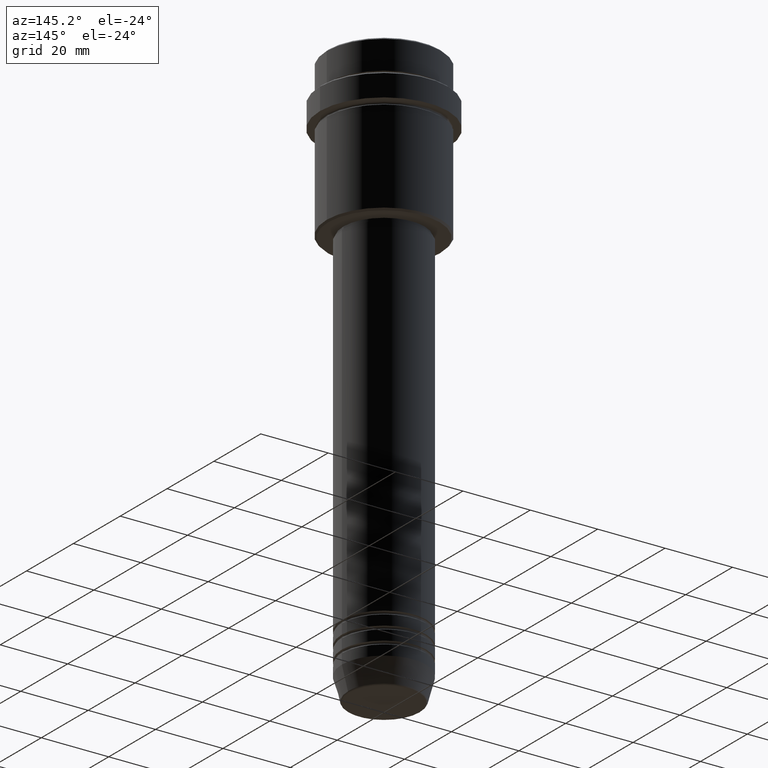
[diagram: clean part render]
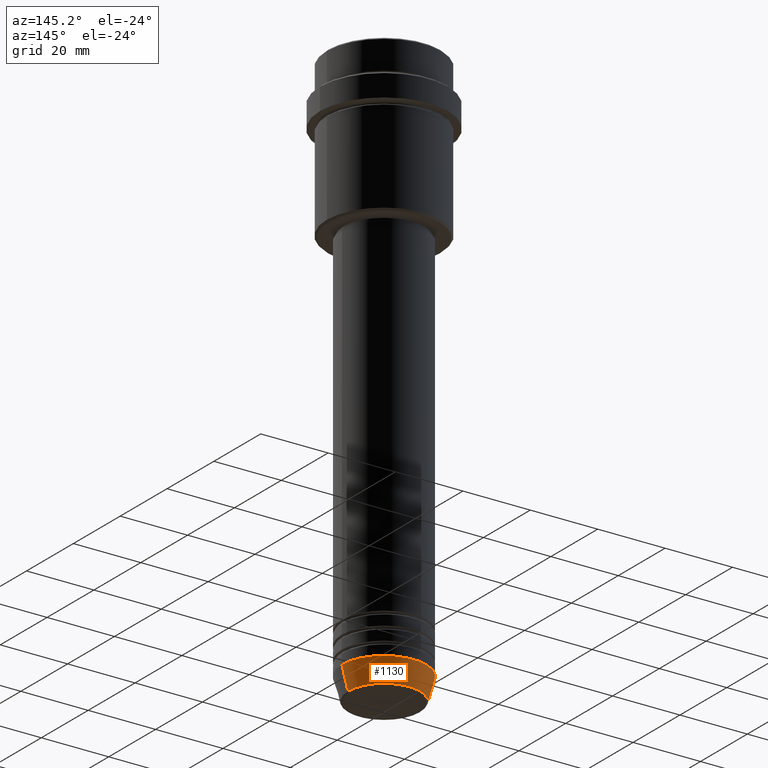
[diagram: same view with one face highlighted and labeled with its STEP entity id]
A machine part, auxiliary view. The second image highlights one B-rep face of the part: STEP entity #1130.
In plain terms, the highlighted conical surface has half-angle 15 deg.
Its self-contained STEP definition (entity closure, byte-faithful):
#3 = VERTEX_POINT ( 'NONE', #1211 ) ;
#62 = CIRCLE ( 'NONE', #410, 10.72365507213718416 ) ;
#68 = VERTEX_POINT ( 'NONE', #627 ) ;
#135 = ORIENTED_EDGE ( 'NONE', *, *, #651, .F. ) ;
#341 = CONICAL_SURFACE ( 'NONE', #1413, 12.50000000000000000, 0.2617993877991500740 ) ;
#365 = DIRECTION ( 'NONE',  ( -0.2588190451025213501, 3.169619151431772337E-17, 0.9659258262890680902 ) ) ;
#378 = LINE ( 'NONE', #509, #977 ) ;
#410 = AXIS2_PLACEMENT_3D ( 'NONE', #648, #1088, #1074 ) ;
#496 = CIRCLE ( 'NONE', #997, 12.50000000000000000 ) ;
#509 = CARTESIAN_POINT ( 'NONE',  ( 12.50000000000000000, 0.000000000000000000, -163.0000000000000000 ) ) ;
#531 = DIRECTION ( 'NONE',  ( -0.000000000000000000, -0.000000000000000000, 1.000000000000000000 ) ) ;
#548 = CARTESIAN_POINT ( 'NONE',  ( 0.000000000000000000, 0.000000000000000000, -163.0000000000000000 ) ) ;
#566 = DIRECTION ( 'NONE',  ( 1.000000000000000000, 0.000000000000000000, 0.000000000000000000 ) ) ;
#627 = CARTESIAN_POINT ( 'NONE',  ( 12.50000000000000000, 0.000000000000000000, -163.0000000000000000 ) ) ;
#645 = EDGE_CURVE ( 'NONE', #784, #3, #62, .T. ) ;
#648 = CARTESIAN_POINT ( 'NONE',  ( 0.000000000000000000, 0.000000000000000000, -169.6294095225512990 ) ) ;
#651 = EDGE_CURVE ( 'NONE', #68, #721, #496, .T. ) ;
#652 = CARTESIAN_POINT ( 'NONE',  ( -12.50000000000000000, 1.530808498934191521E-15, -163.0000000000000000 ) ) ;
#672 = FACE_OUTER_BOUND ( 'NONE', #1073, .T. ) ;
#679 = CARTESIAN_POINT ( 'NONE',  ( 10.72365507213718416, 0.000000000000000000, -169.6294095225512990 ) ) ;
#721 = VERTEX_POINT ( 'NONE', #652 ) ;
#752 = VECTOR ( 'NONE', #365, 1000.000000000000000 ) ;
#767 = ORIENTED_EDGE ( 'NONE', *, *, #926, .F. ) ;
#784 = VERTEX_POINT ( 'NONE', #679 ) ;
#792 = LINE ( 'NONE', #1223, #752 ) ;
#875 = EDGE_CURVE ( 'NONE', #3, #721, #792, .T. ) ;
#879 = CARTESIAN_POINT ( 'NONE',  ( 0.000000000000000000, 0.000000000000000000, -163.0000000000000000 ) ) ;
#926 = EDGE_CURVE ( 'NONE', #784, #68, #378, .T. ) ;
#943 = ORIENTED_EDGE ( 'NONE', *, *, #875, .T. ) ;
#977 = VECTOR ( 'NONE', #1044, 1000.000000000000000 ) ;
#997 = AXIS2_PLACEMENT_3D ( 'NONE', #879, #531, #1174 ) ;
#1014 = ORIENTED_EDGE ( 'NONE', *, *, #645, .T. ) ;
#1044 = DIRECTION ( 'NONE',  ( 0.2588190451025213501, 0.000000000000000000, 0.9659258262890680902 ) ) ;
#1073 = EDGE_LOOP ( 'NONE', ( #1014, #943, #135, #767 ) ) ;
#1074 = DIRECTION ( 'NONE',  ( 1.000000000000000000, 0.000000000000000000, 0.000000000000000000 ) ) ;
#1088 = DIRECTION ( 'NONE',  ( -0.000000000000000000, -0.000000000000000000, 1.000000000000000000 ) ) ;
#1102 = DIRECTION ( 'NONE',  ( -0.000000000000000000, -0.000000000000000000, 1.000000000000000000 ) ) ;
#1130 = ADVANCED_FACE ( 'NONE', ( #672 ), #341, .T. ) ;
#1174 = DIRECTION ( 'NONE',  ( 1.000000000000000000, 0.000000000000000000, 0.000000000000000000 ) ) ;
#1211 = CARTESIAN_POINT ( 'NONE',  ( -10.72365507213718416, 1.422038742429750121E-15, -169.6294095225512990 ) ) ;
#1223 = CARTESIAN_POINT ( 'NONE',  ( -12.50000000000000000, 1.530808498934191521E-15, -163.0000000000000000 ) ) ;
#1413 = AXIS2_PLACEMENT_3D ( 'NONE', #548, #1102, #566 ) ;